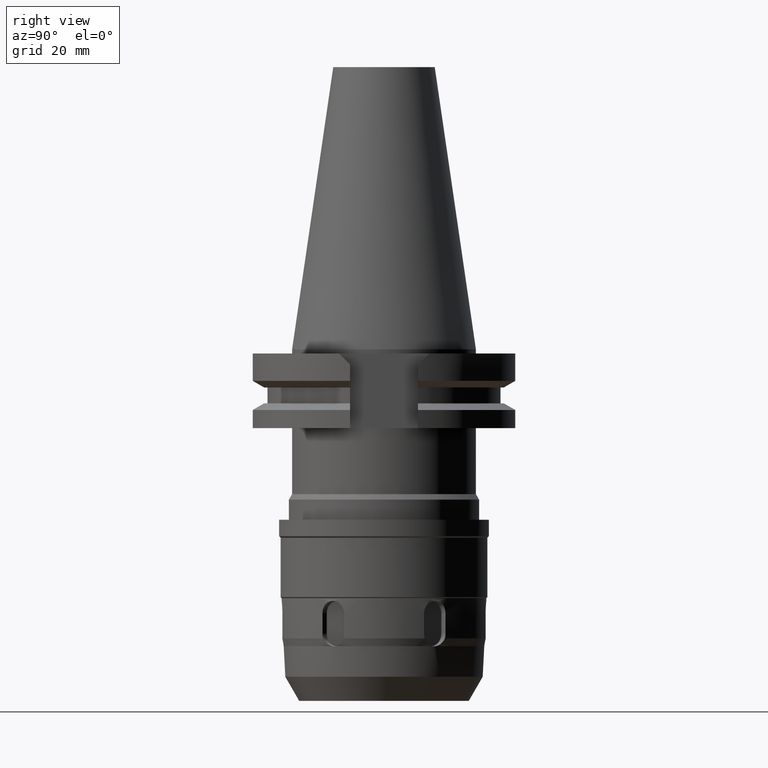
[diagram: clean part render]
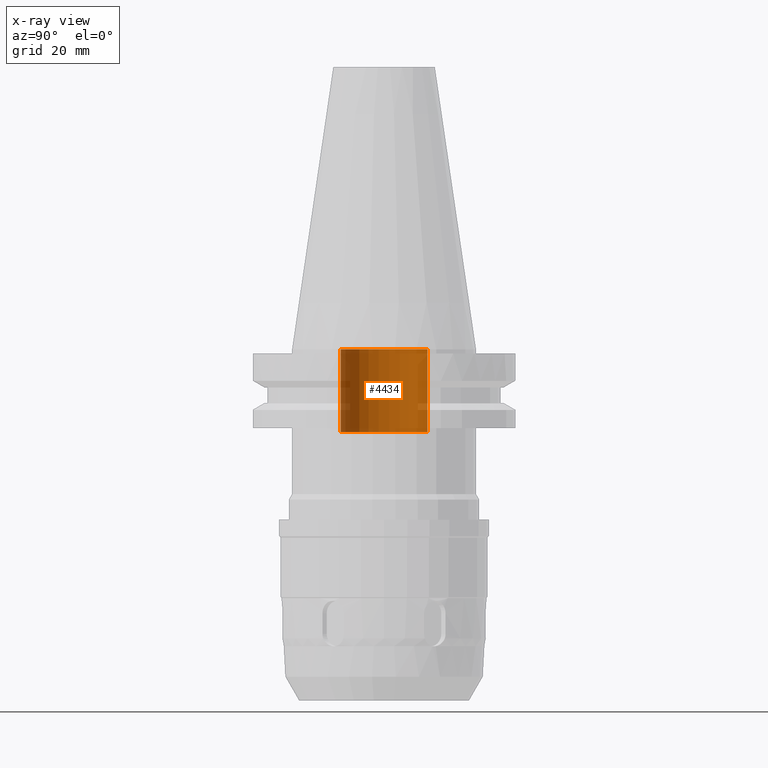
[diagram: x-ray — body ghosted, one internal face saturated and labeled with its STEP entity id]
A machine part, right view, then the same camera in x-ray: the body is ghosted and one INTERNAL B-rep face — a face not visible from any outside direction — is saturated and labeled: STEP entity #4434.
In plain terms, the highlighted cylindrical surface (partial cylindrical patch) has radius 10.5 mm, axis along (0, 0, -1).
Its self-contained STEP definition (entity closure, byte-faithful):
#2210=CARTESIAN_POINT('',(0.E0,2.154306800550E-14,-2.E1));
#2211=DIRECTION('',(0.E0,0.E0,-1.E0));
#2212=DIRECTION('',(0.E0,-1.E0,0.E0));
#2213=AXIS2_PLACEMENT_3D('',#2210,#2211,#2212);
#2242=DIRECTION('',(0.E0,0.E0,1.E0));
#2243=VECTOR('',#2242,2.E1);
#2244=CARTESIAN_POINT('',(0.E0,-1.05E1,-2.E1));
#2245=LINE('',#2244,#2243);
#2249=DIRECTION('',(0.E0,0.E0,1.E0));
#2250=VECTOR('',#2249,2.E1);
#2251=CARTESIAN_POINT('',(0.E0,1.05E1,-2.E1));
#2252=LINE('',#2251,#2250);
#2264=CARTESIAN_POINT('',(0.E0,2.154306800550E-14,5.400124791777E-13));
#2265=DIRECTION('',(0.E0,0.E0,1.E0));
#2266=DIRECTION('',(0.E0,1.E0,0.E0));
#2267=AXIS2_PLACEMENT_3D('',#2264,#2265,#2266);
#2542=CARTESIAN_POINT('',(0.E0,-1.05E1,5.400124791777E-13));
#2543=CARTESIAN_POINT('',(0.E0,1.05E1,5.400124791777E-13));
#2544=VERTEX_POINT('',#2542);
#2545=VERTEX_POINT('',#2543);
#2546=CARTESIAN_POINT('',(0.E0,1.05E1,-2.E1));
#2547=VERTEX_POINT('',#2546);
#2548=CARTESIAN_POINT('',(0.E0,-1.05E1,-2.E1));
#2549=VERTEX_POINT('',#2548);
#4420=CARTESIAN_POINT('',(0.E0,2.154306800550E-14,7.59125E1));
#4421=DIRECTION('',(0.E0,0.E0,-1.E0));
#4422=DIRECTION('',(0.E0,-1.E0,0.E0));
#4423=AXIS2_PLACEMENT_3D('',#4420,#4421,#4422);
#4424=CYLINDRICAL_SURFACE('',#4423,1.05E1);
#4426=ORIENTED_EDGE('',*,*,#4425,.F.);
#4427=ORIENTED_EDGE('',*,*,#4409,.F.);
#4429=ORIENTED_EDGE('',*,*,#4428,.T.);
#4431=ORIENTED_EDGE('',*,*,#4430,.F.);
#4432=EDGE_LOOP('',(#4426,#4427,#4429,#4431));
#4433=FACE_OUTER_BOUND('',#4432,.F.);
#2214=CIRCLE('',#2213,1.05E1);
#2268=CIRCLE('',#2267,1.05E1);
#4409=EDGE_CURVE('',#2549,#2547,#2214,.T.);
#4425=EDGE_CURVE('',#2547,#2545,#2252,.T.);
#4428=EDGE_CURVE('',#2549,#2544,#2245,.T.);
#4430=EDGE_CURVE('',#2545,#2544,#2268,.T.);
#4434=ADVANCED_FACE('',(#4433),#4424,.F.);